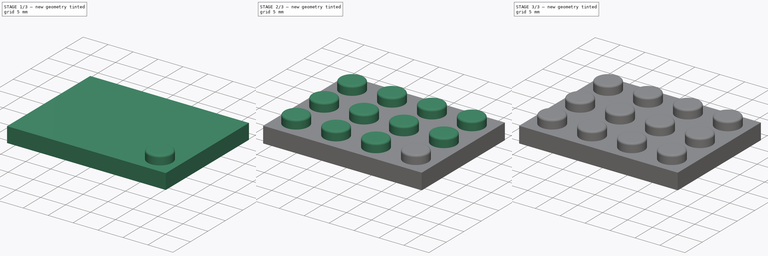
[diagram: build sequence overview — one tinted view per stage of 3, left to right]
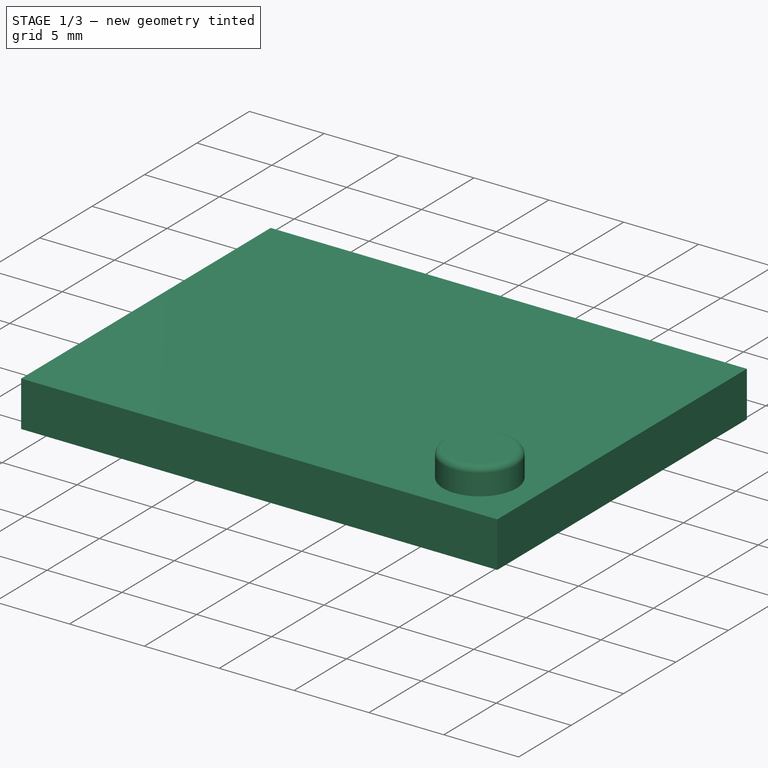
[diagram: stage 1 of 3 — iso view after this stage's code; geometry added in this stage tinted green]
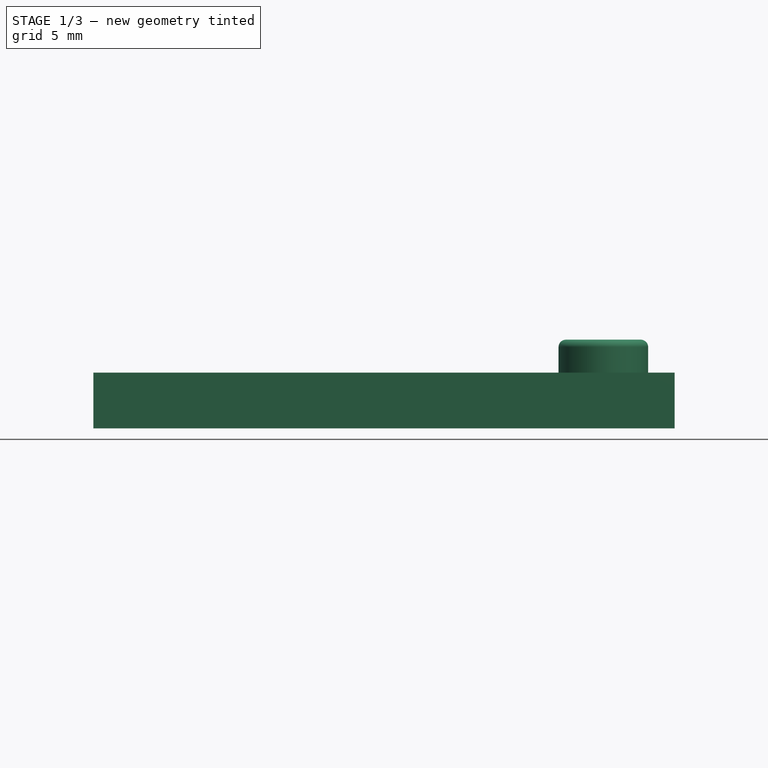
[diagram: stage 1 of 3 — front view after this stage's code; geometry added in this stage tinted green]
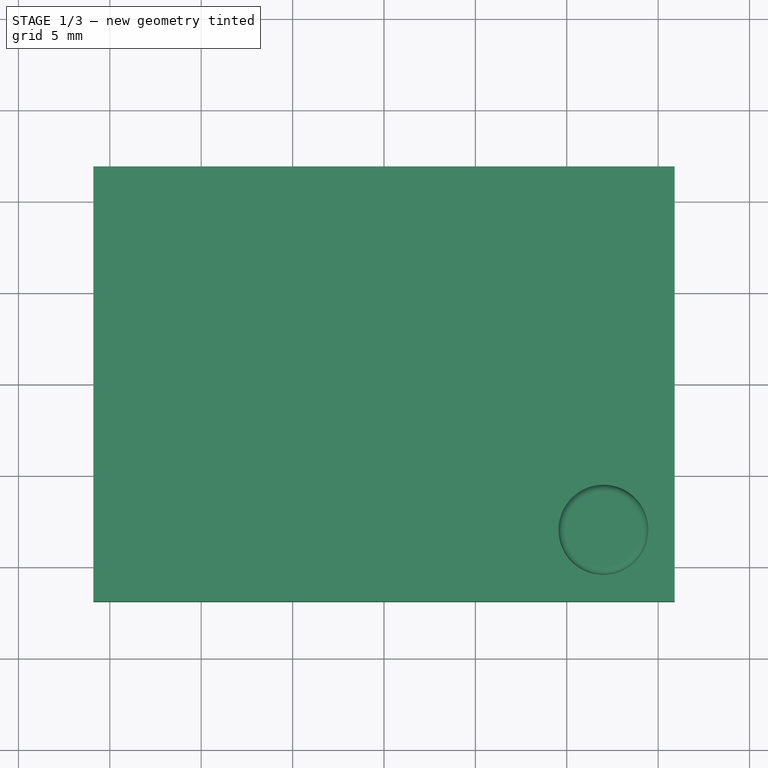
[diagram: stage 1 of 3 — top view after this stage's code; geometry added in this stage tinted green]
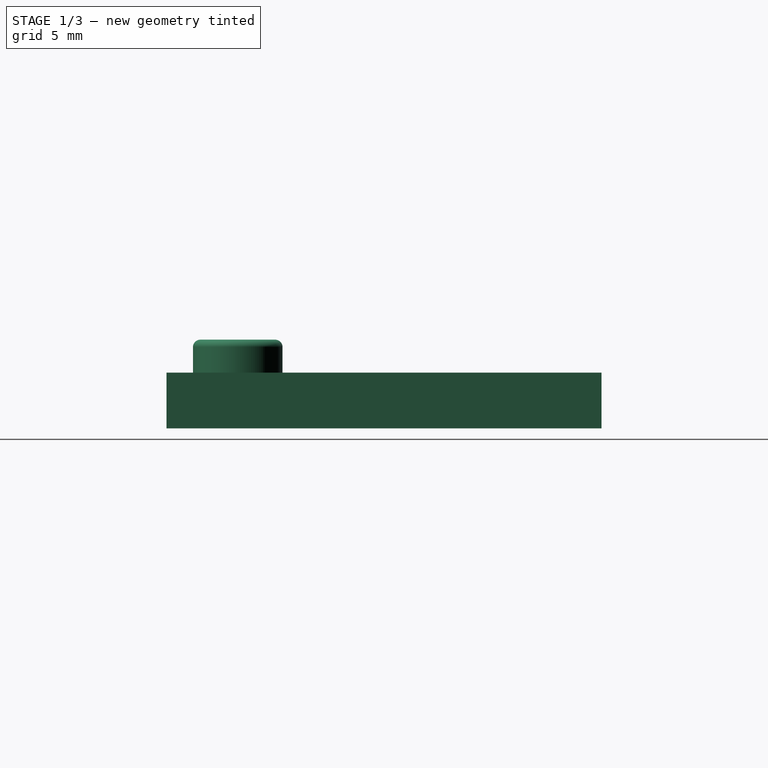
[diagram: stage 1 of 3 — right view after this stage's code; geometry added in this stage tinted green]
FCSTD DOCUMENT  (FreeCAD 0.18R4 (GitTag))
Label: Generic Plates
License: All rights reserved
LicenseURL: http://en.wikipedia.org/wiki/All_rights_reserved
objects: Sketcher::SketchObject×5, PartDesign::LinearPattern×4, PartDesign::Pad×3, PartDesign::MultiTransform×2, PartDesign::Body×2, PartDesign::Plane×2, Spreadsheet::Sheet×1, PartDesign::Pocket×1, PartDesign::Revolution×1
note: 25 computed .brp shape members not serialized (recipe doc carries the construction recipe); baked Part::Feature solids carry a one-line shape summary decoded from their .brp

FEATURE [PartDesign::Body] Body  label="Base Plate"
  Group = -> [Sketch,Pad,Sketch001,Pocket,Sketch002,Pad001,MultiTransform,LinearPattern,LinearPattern001]
  Origin = -> Origin
  Tip = -> MultiTransform
FEATURE [PartDesign::Plane] DatumPlane001
  AttachmentOffset = pos=(12,0,8) rot=(0,0,1;0rad)
  Length = 36.8438
  MapMode = 5
  Placement = pos=(12,-8,1.8e-15) rot=(1,0,0;1.5708rad)
  ResizeMode = 0
  Support = -> [XZ_Plane002]
  Width = 25.0438
  expr: AttachmentOffset.Base.z = 4mm * (dim.y_count - 1)
  expr: AttachmentOffset.Base.x = 4mm * (dim.x_count - 1)
FEATURE [PartDesign::Plane] DatumPlane002
  AttachmentOffset = pos=(0,0,0.15) rot=(0,0,1;0rad)
  Length = 37.3021
  MapMode = 5
  Placement = pos=(0,0,0.15) rot=(0,0,1;0rad)
  ResizeMode = 0
  Support = -> [XY_Plane002]
  Width = 29.3021
  expr: AttachmentOffset.Base.z = dim.layer_play
FEATURE [Sketcher::SketchObject] Sketch005
  MapMode = 5
  Placement = pos=(0,0,0.15) rot=(0,0,1;0rad)
  Support = -> [DatumPlane002]
  expr: Constraints[10] = dim.y_outer
  expr: Constraints[9] = dim.x_outer
  sketch-geometry (4):
    g0: LineSegment StartX=-15.9 StartY=-11.9 StartZ=0 EndX=15.9 EndY=-11.9 EndZ=0
    g1: LineSegment StartX=15.9 StartY=-11.9 StartZ=0 EndX=15.9 EndY=11.9 EndZ=0
    g2: LineSegment StartX=15.9 StartY=11.9 StartZ=0 EndX=-15.9 EndY=11.9 EndZ=0
    g3: LineSegment StartX=-15.9 StartY=11.9 StartZ=0 EndX=-15.9 EndY=-11.9 EndZ=0
  constraints (11):
    c: Coincident(g0,g1)
    c: Coincident(g1,g2)
    c: Coincident(g2,g3)
    c: Coincident(g3,g0)
    c: Horizontal(g0)
    c: Horizontal(g2)
    c: Vertical(g1)
    c: Vertical(g3)
    c: Symmetric(g0,g1,g-1)
    c: DistanceX(g2,g2) = 31.8
    c: DistanceY(g1,g1) = 23.8
FEATURE [PartDesign::Pad] Pad004  label="Plate001"
  Length = 3.05
  Length2 = 100
  Placement = pos=(0,0,0.15) rot=(0,0,1;0rad)
  Profile = -> Sketch005
  Type = 0
  expr: Length = dim.lego_plate_height - dim.layer_play
FEATURE [Sketcher::SketchObject] Sketch006
  ExternalGeometry = -> [Pad004]
  MapMode = 5
  Placement = pos=(12,-8,1.8e-15) rot=(1,0,0;1.5708rad)
  Support = -> [DatumPlane001]
  expr: Constraints[11] = dim.lego_knob_dia / 2
  expr: Constraints[10] = dim.lego_knob_height
  expr: Constraints[8] = dim.lego_knob_fillet
  sketch-geometry (5):
    g0: LineSegment StartX=0 StartY=3.2 StartZ=0 EndX=2.45 EndY=3.2 EndZ=0
    g1: LineSegment StartX=2.45 StartY=3.2 StartZ=0 EndX=2.45 EndY=4.6 EndZ=0
    g2: ArcOfCircle CenterX=2.05 CenterY=4.6 CenterZ=0 NormalX=0 NormalY=0 NormalZ=1 AngleXU=0 Radius=0.4 StartAngle=-9e-16 EndAngle=1.5708
    g3: LineSegment StartX=2.05 StartY=5 StartZ=0 EndX=0 EndY=5 EndZ=0
    g4: LineSegment StartX=0 StartY=5 StartZ=0 EndX=0 EndY=3.2 EndZ=0
  constraints (12):
    c: Perpendicular(g0,g1) = 1.5708
    c: Tangent(g1,g2) = -1.5708
    c: Perpendicular(g3,g4) = 1.5708
    c: Coincident(g4,g0)
    c: Vertical(g4)
    c: Vertical(g1)
    c: PointOnObject(g0,g-3)
    c: PointOnObject(g0,g-2)
    c: Radius(g2) = 0.4
    c: Tangent(g2,g3) = -1.5708
    c: DistanceY(g4,g4) = 1.8
    c: DistanceX(g0,g0) = 2.45
FEATURE [PartDesign::Revolution] Revolution  label="Knob"
  Angle = 360
  Axis = (0,2e-16,1)
  Base = (12,-8,1.8e-15)
  BaseFeature = -> Pad004
  Placement = pos=(0,0,0.15) rot=(0,0,1;0rad)
  Profile = -> Sketch006
  ReferenceAxis = -> Sketch006 [V_Axis]
  Reversed = true
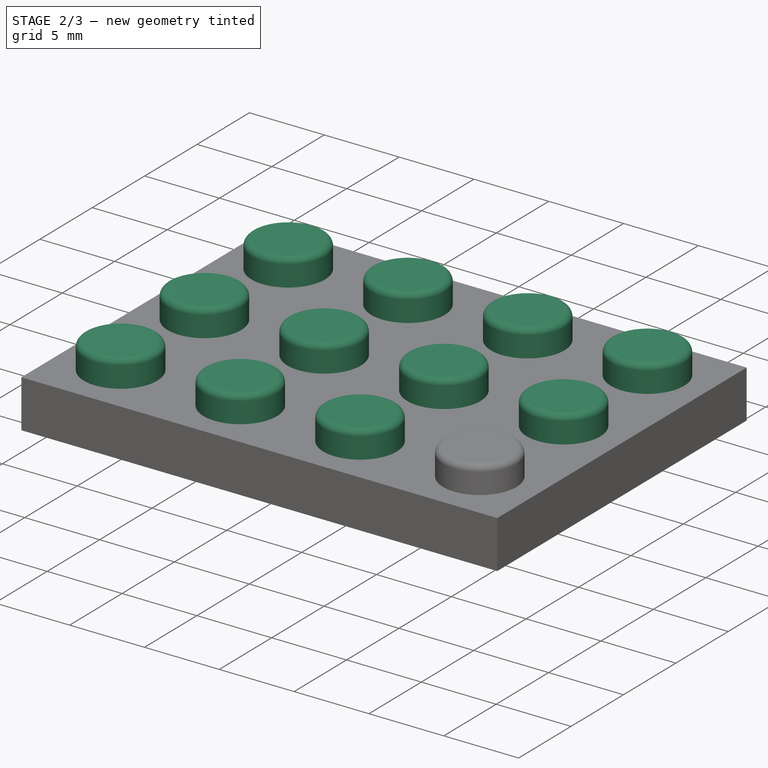
[diagram: stage 2 of 3 — iso view after this stage's code; geometry added in this stage tinted green]
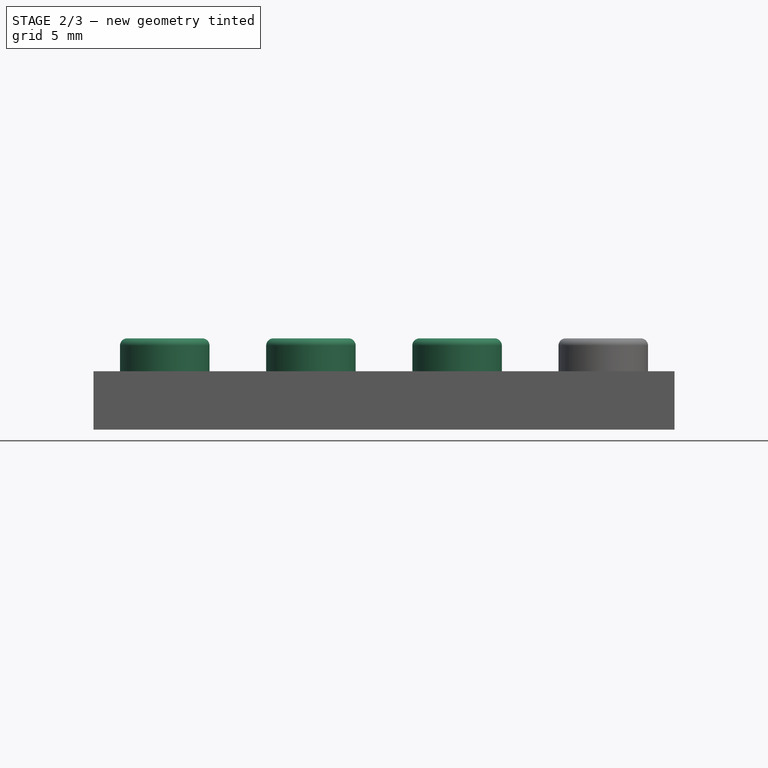
[diagram: stage 2 of 3 — front view after this stage's code; geometry added in this stage tinted green]
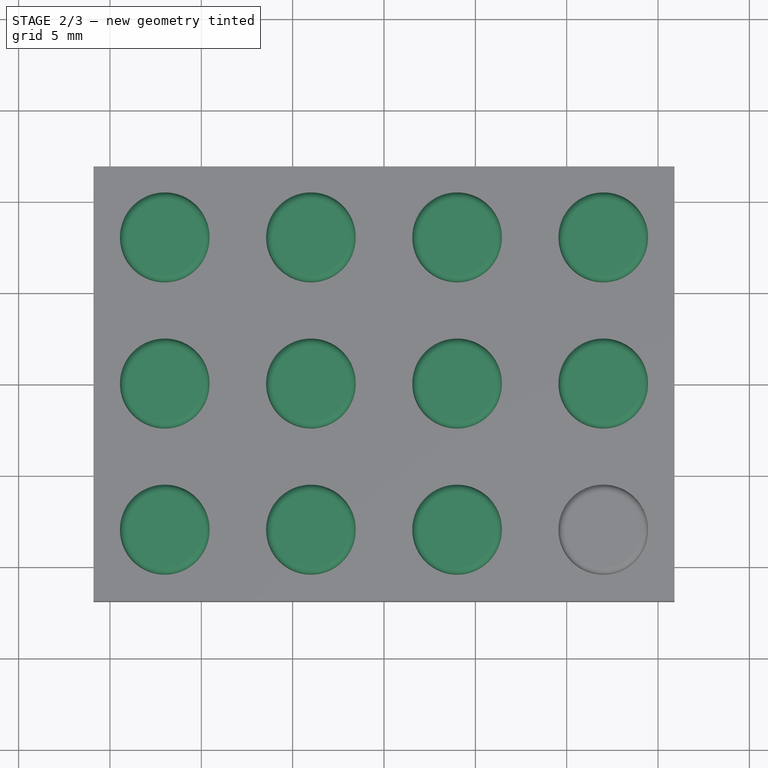
[diagram: stage 2 of 3 — top view after this stage's code; geometry added in this stage tinted green]
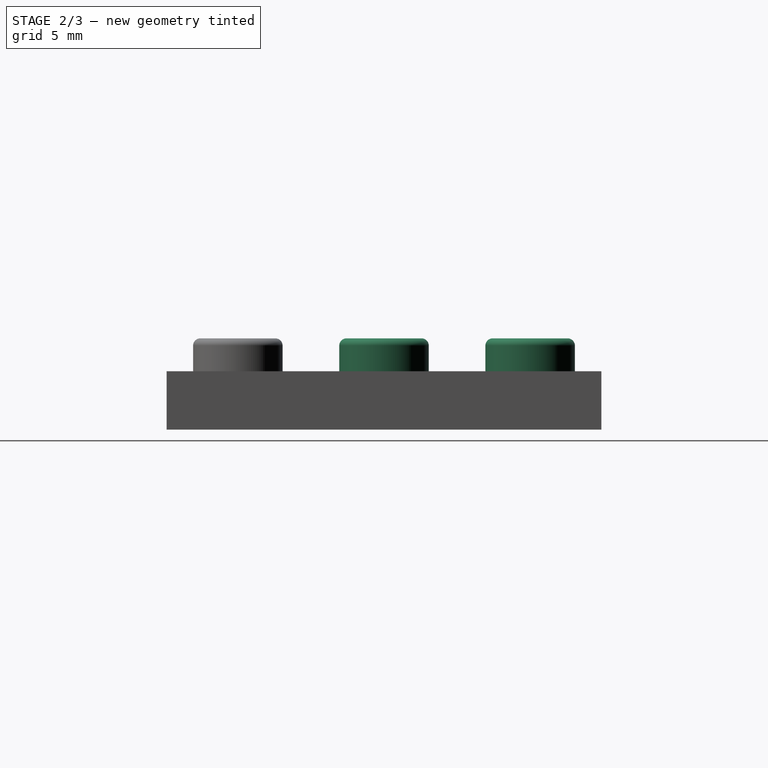
[diagram: stage 2 of 3 — right view after this stage's code; geometry added in this stage tinted green]
FEATURE [Spreadsheet::Sheet] Spreadsheet  label="dim"
  cells = A1=Lego Standard Dimensions; D1=Generic Plates; E1=Number; F1=Dimension; A2=Plate Play; B2(lego_play)==0.1mm; D2=X; E2(x_count)=4; F2(x_outer)==x_count * 8mm - 2 * lego_play; A3=Plate Height; B3(lego_plate_height)==3.2mm; D3=Y; E3(y_count)=3; F3(y_outer)==y_count * 8mm - 2 * lego_play; A4=Brick Height; B4(lego_brick_height)==3 * lego_plate_height; D4=Layer Play; F4(layer_play)==0.15mm; A5=Knob Diameter; B5(lego_knob_dia)==4.9mm; A6=Knob Height; B6(lego_knob_height)==1.8mm; E6=Minimal 3x3; A7=Knob Fillet; B7(lego_knob_fillet)==0.4mm; A8=Pocket Depth; B8(lego_pocket_depth)==2.2mm; A9=Wall Thickness; B9(lego_wall_thick)==1.4mm; A10=Tube Inner Diameter; B10(lego_tube_inner_dia)==4.9mm; A11=Tube Outer Diameter; B11(lego_tube_outer_dia)==6.5mm
FEATURE [Sketcher::SketchObject] Sketch
  MapMode = 5
  Support = -> [XY_Plane]
  expr: Constraints[10] = dim.y_outer
  expr: Constraints[9] = dim.x_outer
  sketch-geometry (4):
    g0: LineSegment StartX=-15.9 StartY=11.9 StartZ=0 EndX=15.9 EndY=11.9 EndZ=0
    g1: LineSegment StartX=15.9 StartY=11.9 StartZ=0 EndX=15.9 EndY=-11.9 EndZ=0
    g2: LineSegment StartX=15.9 StartY=-11.9 StartZ=0 EndX=-15.9 EndY=-11.9 EndZ=0
    g3: LineSegment StartX=-15.9 StartY=-11.9 StartZ=0 EndX=-15.9 EndY=11.9 EndZ=0
  constraints (11):
    c: Coincident(g0,g1)
    c: Coincident(g1,g2)
    c: Coincident(g2,g3)
    c: Coincident(g3,g0)
    c: Horizontal(g0)
    c: Horizontal(g2)
    c: Vertical(g1)
    c: Vertical(g3)
    c: Symmetric(g2,g0,g-1)
    c: DistanceX(g0,g0) = 31.8
    c: DistanceY(g1,g1) = 23.8
FEATURE [PartDesign::Pad] Pad  label="Plate"
  Length = 3.05
  Length2 = 100
  Profile = -> Sketch
  Type = 0
  expr: Length = dim.lego_plate_height - dim.layer_play
FEATURE [Sketcher::SketchObject] Sketch001
  ExternalGeometry = -> [Pad]
  MapMode = 5
  Placement = pos=(0,0,0) rot=(1,0,0;3.14159rad)
  Support = -> [Pad]
  expr: Constraints[10] = dim.lego_wall_thick
  expr: Constraints[9] = dim.lego_wall_thick
  sketch-geometry (4):
    g0: LineSegment StartX=-14.5 StartY=10.5 StartZ=0 EndX=14.5 EndY=10.5 EndZ=0
    g1: LineSegment StartX=14.5 StartY=10.5 StartZ=0 EndX=14.5 EndY=-10.5 EndZ=0
    g2: LineSegment StartX=14.5 StartY=-10.5 StartZ=0 EndX=-14.5 EndY=-10.5 EndZ=0
    g3: LineSegment StartX=-14.5 StartY=-10.5 StartZ=0 EndX=-14.5 EndY=10.5 EndZ=0
  constraints (11):
    c: Coincident(g0,g1)
    c: Coincident(g1,g2)
    c: Coincident(g2,g3)
    c: Coincident(g3,g0)
    c: Horizontal(g0)
    c: Horizontal(g2)
    c: Vertical(g1)
    c: Vertical(g3)
    c: Symmetric(g2,g0,g-1)
    c: DistanceX(g-3,g0) = 1.4
    c: DistanceY(g0,g-3) = 1.4
FEATURE [PartDesign::Pocket] Pocket
  BaseFeature = -> Pad
  Length = 2.2
  Length2 = 100
  Profile = -> Sketch001
  Type = 0
  expr: Length = dim.lego_pocket_depth
FEATURE [PartDesign::LinearPattern] LinearPattern004
  Direction = -> Sketch006 [H_Axis]
  Length = 24
  Occurrences = 4
  Placement = pos=(0,0,0.15) rot=(0,0,1;0rad)
  Reversed = true
  expr: Length = 8mm * (dim.x_count - 1)
  expr: Occurrences = dim.x_count
FEATURE [PartDesign::LinearPattern] LinearPattern005
  Direction = -> Sketch006 [N_Axis]
  Length = 16
  Occurrences = 3
  Placement = pos=(0,0,0.15) rot=(0,0,1;0rad)
  Reversed = true
  expr: Length = 8mm * (dim.y_count - 1)
  expr: Occurrences = dim.y_count
FEATURE [PartDesign::MultiTransform] MultiTransform002  label="Multi Knobs"
  BaseFeature = -> Revolution
  Originals = -> [Revolution]
  Placement = pos=(0,0,0.15) rot=(0,0,1;0rad)
  Transformations = -> [LinearPattern004,LinearPattern005]
FEATURE [PartDesign::Body] Body002  label="Top Plate"
  Group = -> [DatumPlane002,Sketch005,Pad004,DatumPlane001,Sketch006,Revolution,MultiTransform002,LinearPattern004,LinearPattern005]
  Origin = -> Origin002
  Placement = pos=(0,0,3.2) rot=(0,0,1;0rad)
  Tip = -> MultiTransform002
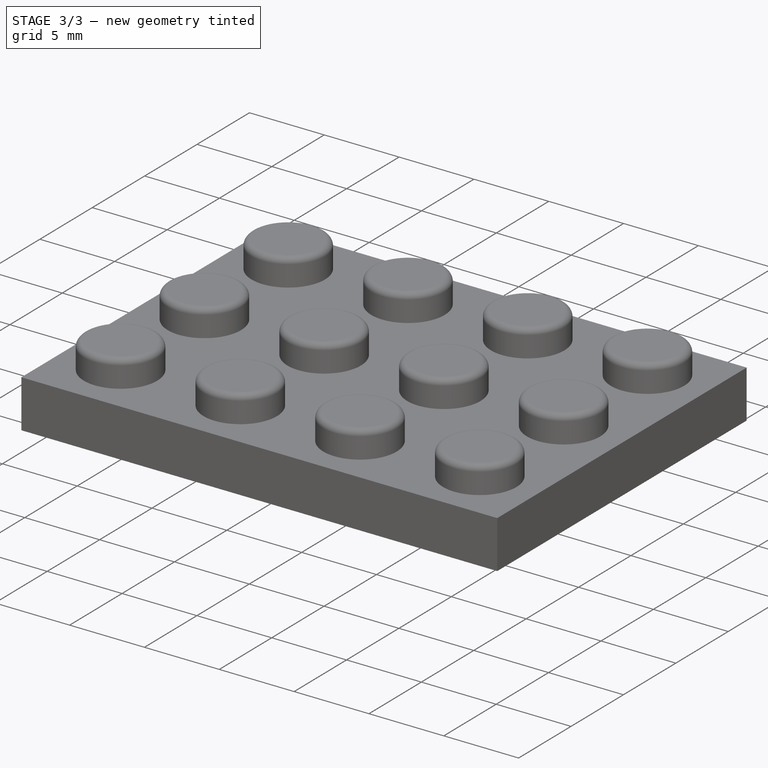
[diagram: stage 3 of 3 — iso view after this stage's code; geometry added in this stage tinted green]
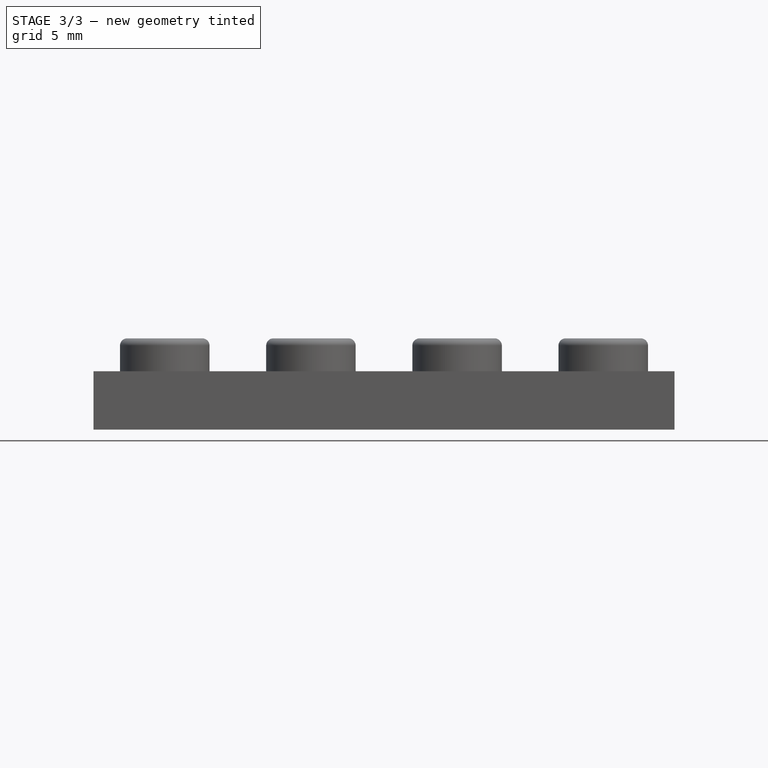
[diagram: stage 3 of 3 — front view after this stage's code; geometry added in this stage tinted green]
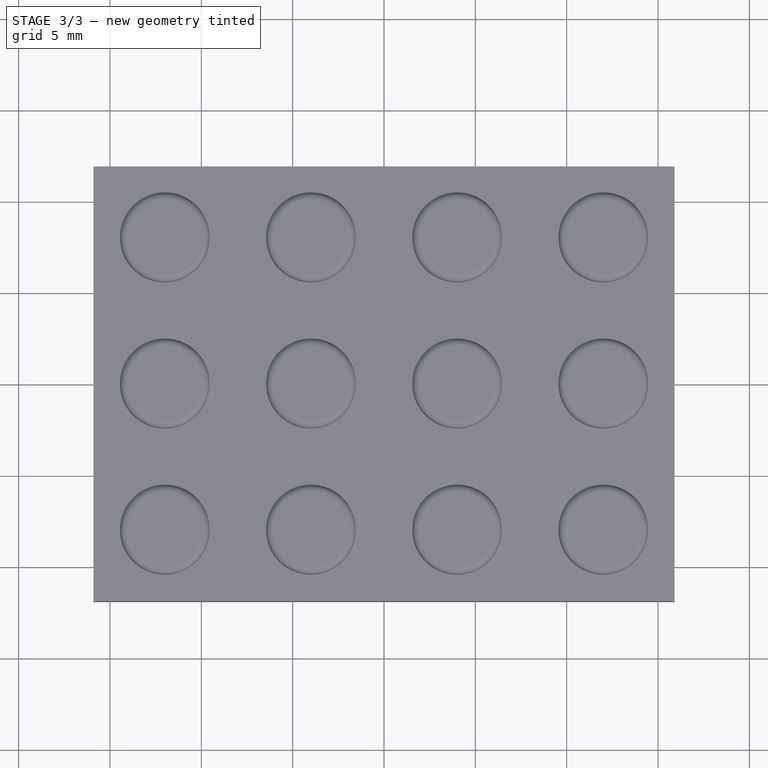
[diagram: stage 3 of 3 — top view after this stage's code; geometry added in this stage tinted green]
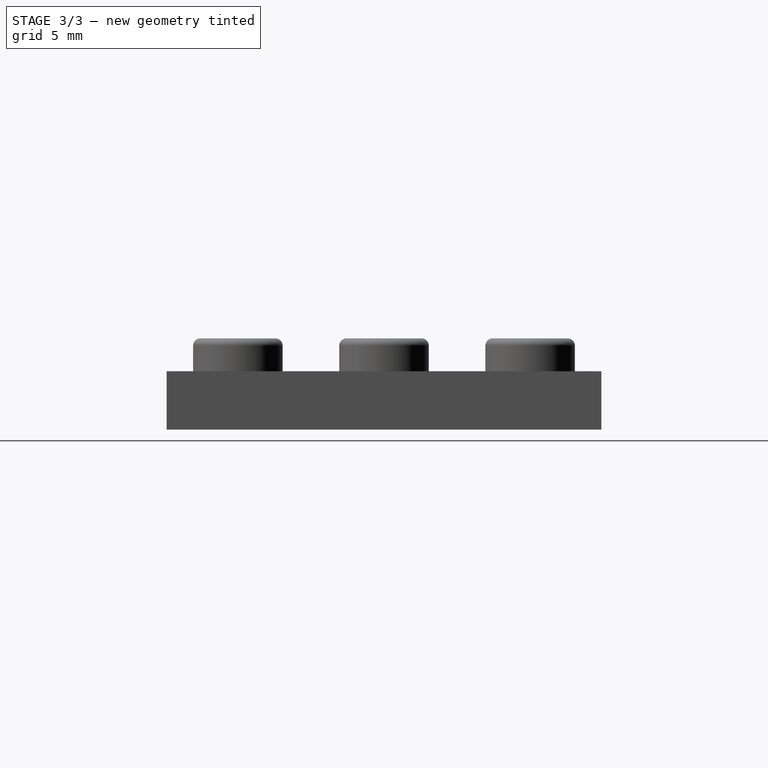
[diagram: stage 3 of 3 — right view after this stage's code; geometry added in this stage tinted green]
FEATURE [Sketcher::SketchObject] Sketch002
  MapMode = 5
  Placement = pos=(0,0,2.2) rot=(1,0,0;3.14159rad)
  Support = -> [Pocket]
  expr: Constraints[4] = dim.lego_tube_outer_dia
  expr: Constraints[3] = dim.lego_tube_inner_dia
  expr: Constraints[2] = 4 * (dim.y_count - 2)
  expr: Constraints[1] = 4mm * (dim.x_count - 2)
  sketch-geometry (2):
    g0: Circle CenterX=8 CenterY=4 CenterZ=0 NormalX=0 NormalY=0 NormalZ=1 AngleXU=0 Radius=3.25
    g1: Circle CenterX=8 CenterY=4 CenterZ=0 NormalX=0 NormalY=0 NormalZ=1 AngleXU=0 Radius=2.45
  constraints (5):
    c: Coincident(g0,g1)
    c: DistanceX(g-1,g0) = 8
    c: DistanceY(g0) = 4
    c: Diameter(g1) = 4.9
    c: Diameter(g0) = 6.5
FEATURE [PartDesign::Pad] Pad001  label="Tube"
  BaseFeature = -> Pocket
  Length = 2.2
  Length2 = 100
  Profile = -> Sketch002
  Type = 0
  expr: Length = dim.lego_pocket_depth
FEATURE [PartDesign::LinearPattern] LinearPattern
  Direction = -> Sketch002 [H_Axis]
  Length = 16
  Occurrences = 3
  Reversed = true
  expr: Length = 8mm * (dim.x_count - 2)
  expr: Occurrences = dim.x_count - 1
FEATURE [PartDesign::LinearPattern] LinearPattern001
  Direction = -> Sketch002 [V_Axis]
  Length = 8
  Occurrences = 2
  Reversed = true
  expr: Length = 8mm * (dim.y_count - 2)
  expr: Occurrences = dim.y_count - 1
FEATURE [PartDesign::MultiTransform] MultiTransform  label="Multi Tubes"
  BaseFeature = -> Pad001
  Originals = -> [Pad001]
  Transformations = -> [LinearPattern,LinearPattern001]
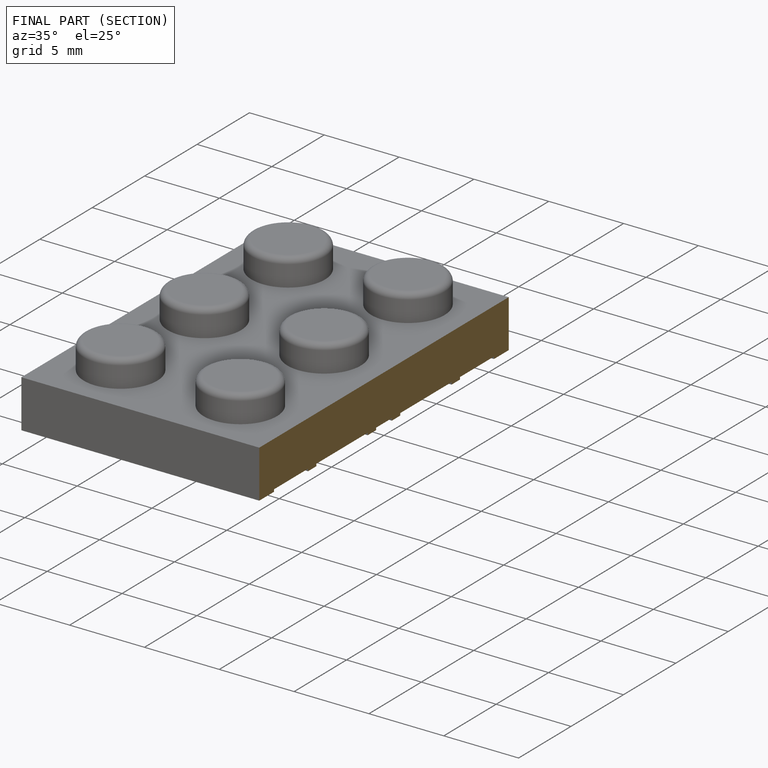
[diagram: finished part — half-section view (interior)]
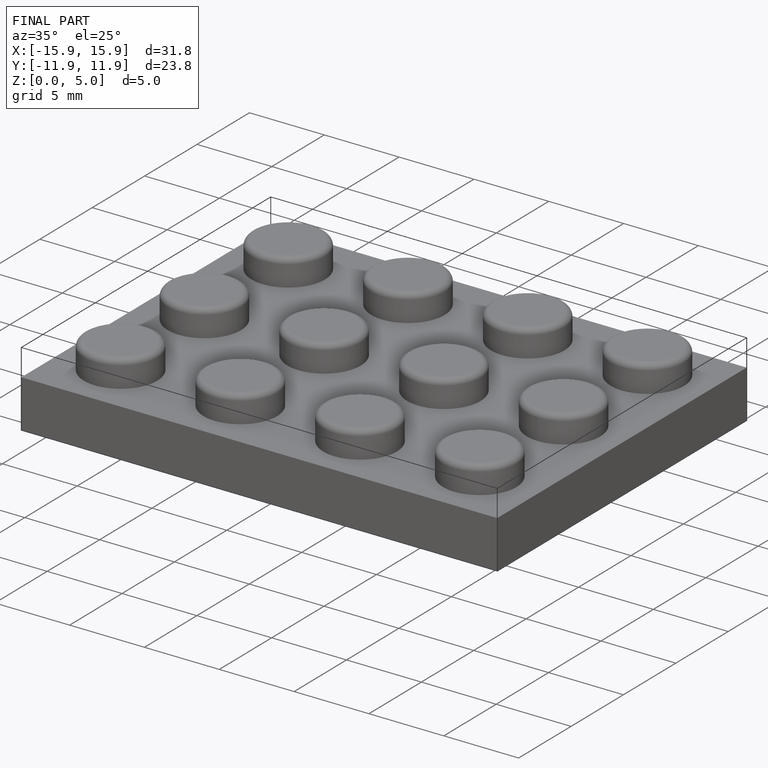
[diagram: finished part — iso view with bounding-box wireframe]
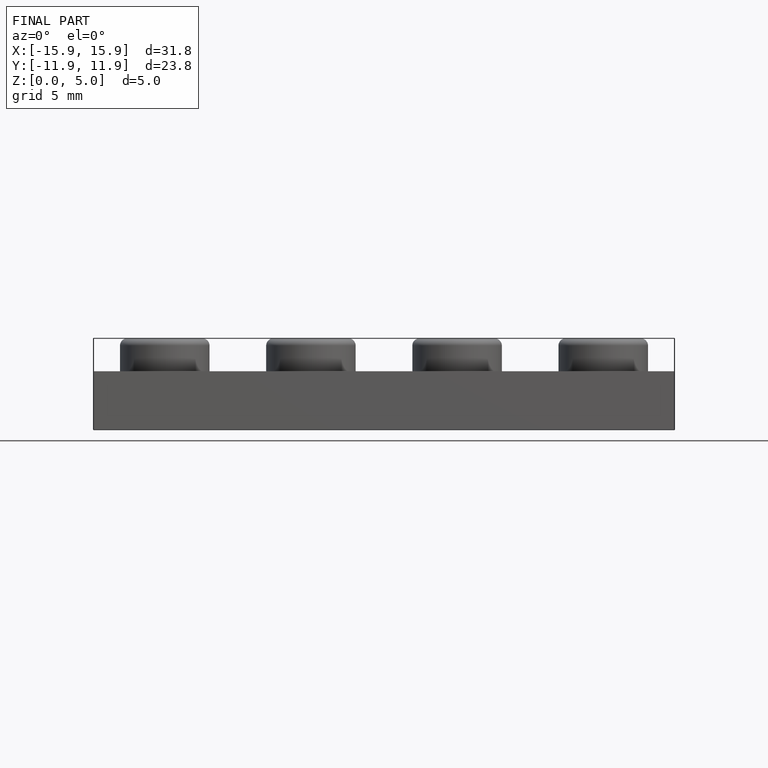
[diagram: finished part — front view with bounding-box wireframe]
